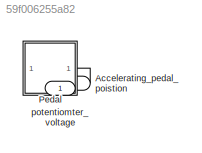
MODEL slx_59f006255a82
KIND model
CONFIG AbsTol = auto
CONFIG EnableMultiTasking = off
CONFIG FixedStep = auto
CONFIG MaxStep = auto
CONFIG MinStep = auto
CONFIG PreLoadFcn = data
CONFIG RelTol = 1e-3
CONFIG SampleTimeConstraint = Unconstrained
CONFIG SolverName = VariableStepAuto
CONFIG StartTime = 0.0
CONFIG StopFcn = drawing
CONFIG StopTime = 10.0
BLOCK [Inport] Accelerating_pedal_poistion
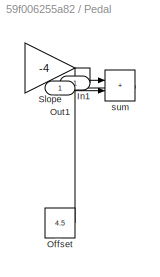
BLOCK [SubSystem] Pedal
  Ports = [1, 1]
  RequestExecContextInheritance = off
BLOCK [Inport] Pedal/In1
BLOCK [Constant] Pedal/Offset
  Value = 4.5
BLOCK [Outport] Pedal/Out1
BLOCK [Gain] Pedal/Slope
  Gain = -4
BLOCK [Sum] Pedal/sum
  IconShape = rectangular
  Ports = [2, 1]
BLOCK [Outport] potentiomter_voltage
LINE Accelerating_pedal_poistion:1 -> Pedal:1
LINE Pedal/In1:1 -> Pedal/Slope:1
LINE Pedal/Offset:1 -> Pedal/sum:2
LINE Pedal/Slope:1 -> Pedal/sum:1
LINE Pedal/sum:1 -> Pedal/Out1:1
LINE Pedal:1 -> potentiomter_voltage:1
